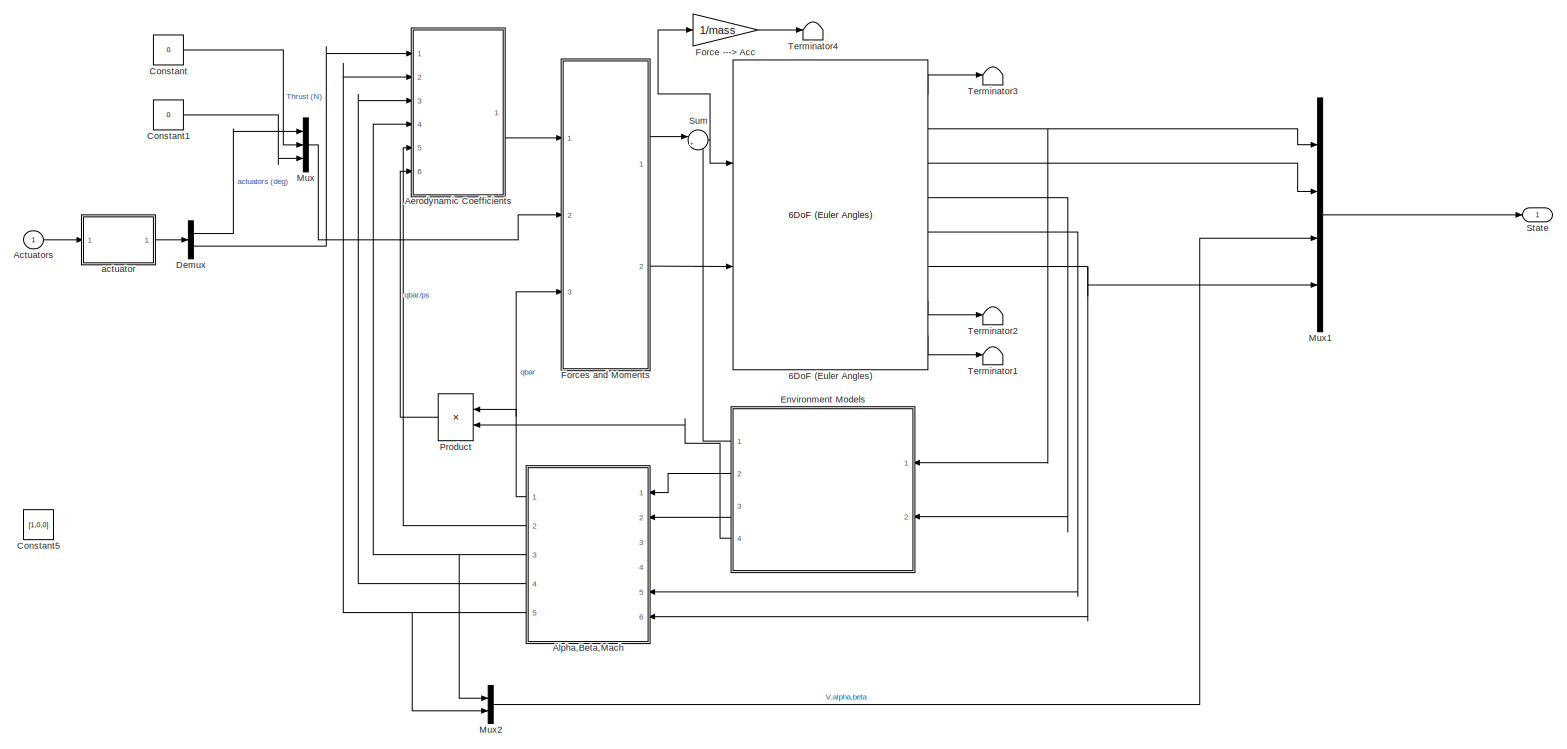
[diagram: root canvas - part 1/1, most of the canvas]
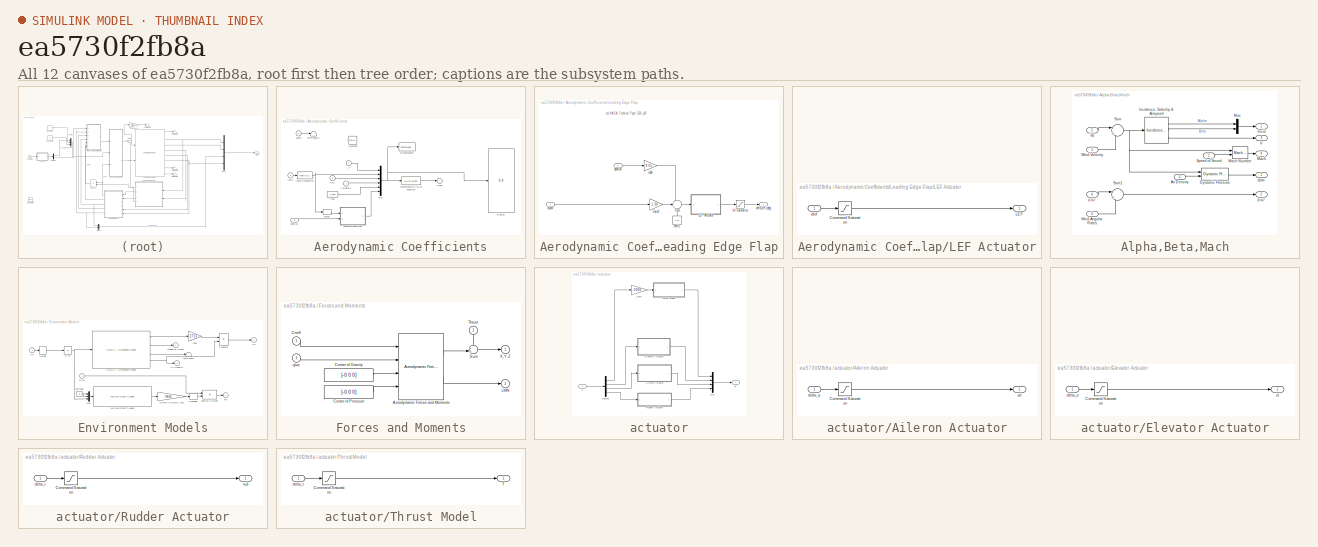
[diagram: thumbnail index - all 12 canvases of the model, root first then tree order]
MODEL slx_ea5730f2fb8a
KIND model
BLOCK [Reference] 6DoF (Euler Angles)  REF=aerolib6dof2/6DoF (Euler Angles)
  Ports = [2, 8]
  SourceBlock = aerolib6dof2/6DoF (Euler Angles)
  SourceType = 6DoF EoM (Body Axis)
  Vm_0 = 0
  eul_0 = 0
  inertia = Inertia
  inertia_e = eye(3)
  inertia_f = 2*eye(3)
  k_quat = 1.0
  mass_0 = mass
  mass_e = 0.5
  mass_f = 2.0
  mtype = Fixed
  pm_0 = 0
  rep = Euler Angles
  units = English (Velocity in ft/s)
  xme_0 = 0
BLOCK [Inport] Actuators
  IconDisplay = Port number
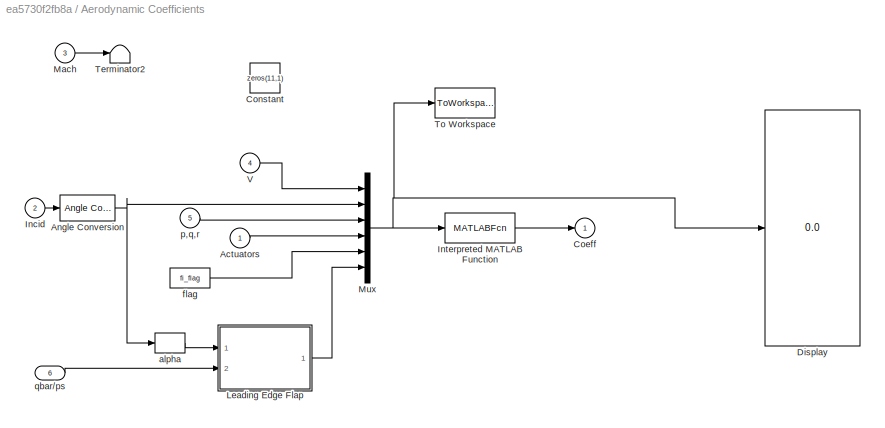
BLOCK [SubSystem] Aerodynamic Coefficients
  FunctionWithSeparateData = off
  MaskHideContents = off
  MinAlgLoopOccurrences = off
  Opaque = off
  Ports = [6, 1]
  PropExecContextOutsideSubsystem = off
  RTWSystemCode = Auto
  RequestExecContextInheritance = off
BLOCK [Inport] Aerodynamic Coefficients/Actuators
  IconDisplay = Port number
BLOCK [Reference] Aerodynamic Coefficients/Angle Conversion  REF=aerolibconvert2/Angle Conversion
  IU = rad
  OU = deg
  Ports = [1, 1]
  SourceBlock = aerolibconvert2/Angle Conversion
  SourceType = Angle Conversion
BLOCK [Outport] Aerodynamic Coefficients/Coeff
  IconDisplay = Port number
  InitialOutput = 0
BLOCK [Constant] Aerodynamic Coefficients/Constant
  Value = zeros(11,1)
BLOCK [Display] Aerodynamic Coefficients/Display
  Decimation = 12
  Lockdown = off
  Ports = [1]
BLOCK [Inport] Aerodynamic Coefficients/Incid
  IconDisplay = Port number
  Port = 2
BLOCK [MATLABFcn] Aerodynamic Coefficients/Interpreted MATLAB Function
  MATLABFcn = F16Coef1
  OutputDimensions = 6
  Ports = [1, 1]
BLOCK [SubSystem] Aerodynamic Coefficients/Leading Edge Flap
  FunctionWithSeparateData = off
  MaskHideContents = off
  MinAlgLoopOccurrences = off
  Opaque = off
  Ports = [2, 1]
  PropExecContextOutsideSubsystem = off
  RTWSystemCode = Auto
  RequestExecContextInheritance = off
BLOCK [Gain] Aerodynamic Coefficients/Leading Edge Flap/Gain2
  Gain = 1.38
BLOCK [SubSystem] Aerodynamic Coefficients/Leading Edge Flap/LEF Actuator
  FunctionWithSeparateData = off
  MaskHideContents = off
  MinAlgLoopOccurrences = off
  Opaque = off
  Ports = [1, 1]
  PropExecContextOutsideSubsystem = off
  RTWSystemCode = Auto
  RequestExecContextInheritance = off
BLOCK [Saturate] Aerodynamic Coefficients/Leading Edge Flap/LEF Actuator/Command Saturation
  InputPortMap = u0
  LowerLimit = 0
  Ports = [1, 1]
  UpperLimit = 25
BLOCK [Outport] Aerodynamic Coefficients/Leading Edge Flap/LEF Actuator/LEF
  IconDisplay = Port number
BLOCK [Inport] Aerodynamic Coefficients/Leading Edge Flap/LEF Actuator/dlef
  IconDisplay = Port number
BLOCK [Sum] Aerodynamic Coefficients/Leading Edge Flap/Sum
  IconShape = round
  Inputs = -|+|+
  Ports = [3, 1]
BLOCK [Inport] Aerodynamic Coefficients/Leading Edge Flap/alpha
  IconDisplay = Port number
BLOCK [Constant] Aerodynamic Coefficients/Leading Edge Flap/coeff1
  Value = 1.45
BLOCK [Outport] Aerodynamic Coefficients/Leading Edge Flap/delta_lef (deg)
  IconDisplay = Port number
BLOCK [Saturate] Aerodynamic Coefficients/Leading Edge Flap/lef Saturation
  InputPortMap = u0
  LowerLimit = 0
  Ports = [1, 1]
  UpperLimit = 25
BLOCK [Inport] Aerodynamic Coefficients/Leading Edge Flap/qbar//ps
  IconDisplay = Port number
  Port = 2
BLOCK [Gain] Aerodynamic Coefficients/Leading Edge Flap/r2d6
  Gain = 9.05
BLOCK [Inport] Aerodynamic Coefficients/Mach
  IconDisplay = Port number
  Port = 3
BLOCK [Mux] Aerodynamic Coefficients/Mux
  DisplayOption = bar
  Inputs = 6
  Ports = [6, 1]
BLOCK [Terminator] Aerodynamic Coefficients/Terminator2
BLOCK [ToWorkspace] Aerodynamic Coefficients/To Workspace
  MaxDataPoints = inf
  Ports = [1]
  SampleTime = -1
  VariableName = simout
BLOCK [Inport] Aerodynamic Coefficients/V
  IconDisplay = Port number
  Port = 4
BLOCK [Selector] Aerodynamic Coefficients/alpha
  IndexOptions = Index vector (dialog)
  Indices = 1
  InputPortWidth = 2
  OutputSizes = 1
  Ports = [1, 1]
BLOCK [Constant] Aerodynamic Coefficients/flag
  Value = fi_flag
BLOCK [Inport] Aerodynamic Coefficients/p,q,r
  IconDisplay = Port number
  Port = 5
BLOCK [Inport] Aerodynamic Coefficients/qbar//ps
  IconDisplay = Port number
  Port = 6
BLOCK [SubSystem] Alpha,Beta,Mach
  FunctionWithSeparateData = off
  MaskHideContents = off
  MinAlgLoopOccurrences = off
  Opaque = off
  Ports = [6, 5]
  PropExecContextOutsideSubsystem = off
  RTWSystemCode = Auto
  RequestExecContextInheritance = off
BLOCK [Inport] Alpha,Beta,Mach/Air Density
  IconDisplay = Port number
  Port = 2
BLOCK [Reference] Alpha,Beta,Mach/Dynamic Pressure  REF=aerolibasang/Dynamic Pressure
  Ports = [2, 1]
  SourceBlock = aerolibasang/Dynamic Pressure
  SourceType = Dynamic Pressure
BLOCK [Outport] Alpha,Beta,Mach/Incid
  IconDisplay = Port number
  Port = 5
BLOCK [Reference] Alpha,Beta,Mach/Incidence, Sideslip & Airspeed  REF=aerolibasang/Incidence, Sideslip,
& Airspeed
  Ports = [1, 3]
  SourceBlock = aerolibasang/Incidence, Sideslip,\n& Airspeed
  SourceType = Incidence,Sideslip,&Airspeed
BLOCK [Outport] Alpha,Beta,Mach/Mach
  IconDisplay = Port number
  Port = 4
BLOCK [Reference] Alpha,Beta,Mach/Mach Number  REF=aerolibasang/Mach Number
  Ports = [2, 1]
  SourceBlock = aerolibasang/Mach Number
  SourceType = Mach Number
BLOCK [Mux] Alpha,Beta,Mach/Mux
  DisplayOption = bar
  Inputs = 2
  Ports = [2, 1]
BLOCK [Inport] Alpha,Beta,Mach/Speed of Sound
  IconDisplay = Port number
BLOCK [Sum] Alpha,Beta,Mach/Sum
  IconShape = round
  Inputs = |+-
  Ports = [2, 1]
BLOCK [Sum] Alpha,Beta,Mach/Sum1
  IconShape = round
  Inputs = |++
  Ports = [2, 1]
BLOCK [Outport] Alpha,Beta,Mach/V
  IconDisplay = Port number
  Port = 3
BLOCK [Inport] Alpha,Beta,Mach/Vb
  IconDisplay = Port number
  Port = 5
  PortDimensions = 3
BLOCK [Inport] Alpha,Beta,Mach/Wind Angular Rates
  IconDisplay = Port number
  Port = 4
  PortDimensions = 3
BLOCK [Inport] Alpha,Beta,Mach/Wind Velocity
  IconDisplay = Port number
  Port = 3
  PortDimensions = 3
BLOCK [Inport] Alpha,Beta,Mach/p,q,r
  IconDisplay = Port number
  Port = 6
  PortDimensions = 3
BLOCK [Outport] Alpha,Beta,Mach/p,q,r 
  IconDisplay = Port number
  Port = 2
BLOCK [Outport] Alpha,Beta,Mach/qbar
  IconDisplay = Port number
  InitialOutput = 0
BLOCK [Constant] Constant
  Value = 0
BLOCK [Constant] Constant1
  Value = 0
BLOCK [Constant] Constant5
  Value = [1,0,0]
BLOCK [Demux] Demux
  DisplayOption = bar
  Outputs = [1 3]
  Ports = [1, 2]
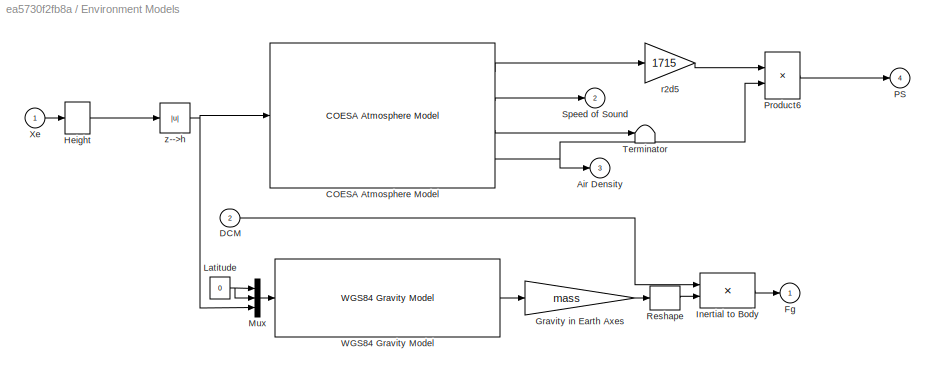
BLOCK [SubSystem] Environment Models
  FunctionWithSeparateData = off
  MaskHideContents = off
  MinAlgLoopOccurrences = off
  Opaque = off
  Ports = [2, 4]
  PropExecContextOutsideSubsystem = off
  RTWSystemCode = Auto
  RequestExecContextInheritance = off
BLOCK [Outport] Environment Models/Air Density
  IconDisplay = Port number
  InitialOutput = 0
  Port = 3
BLOCK [Reference] Environment Models/COESA Atmosphere Model  REF=aerolibatmos2/COESA Atmosphere Model
  Ports = [1, 4]
  SourceBlock = aerolibatmos2/COESA Atmosphere Model
  SourceType = Atmosphere Model
  action = None
  envelope_percent = 1%
  envelope_var = High temperature
  model = Profile
  profile_alt = 5 km (16404 ft)
  profile_percent = 10%
  profile_var = High temperature
  spec = 1976 COESA-extended U.S. Standard Atmosphere
  units = English (Velocity in ft/s)
BLOCK [Inport] Environment Models/DCM
  IconDisplay = Port number
  Port = 2
BLOCK [Outport] Environment Models/Fg
  IconDisplay = Port number
  InitialOutput = 0
BLOCK [Gain] Environment Models/Gravity in Earth Axes
  Gain = mass
BLOCK [Selector] Environment Models/Height
  IndexOptions = Index vector (dialog)
  Indices = [3]
  InputPortWidth = 3
  OutputSizes = 1
  Ports = [1, 1]
BLOCK [Product] Environment Models/Inertial to Body
  Multiplication = Matrix(*)
  Ports = [2, 1]
  RndMeth = Floor
BLOCK [Constant] Environment Models/Latitude
  Value = 0
BLOCK [Mux] Environment Models/Mux
  DisplayOption = bar
  Inputs = 3
  Ports = [3, 1]
BLOCK [Outport] Environment Models/PS
  IconDisplay = Port number
  Port = 4
BLOCK [Product] Environment Models/Product6
  Inputs = **
  Ports = [2, 1]
  RndMeth = Floor
BLOCK [Reshape] Environment Models/Reshape
  Ports = [1, 1]
BLOCK [Outport] Environment Models/Speed of Sound
  IconDisplay = Port number
  InitialOutput = 0
  Port = 2
BLOCK [Terminator] Environment Models/Terminator
BLOCK [Reference] Environment Models/WGS84 Gravity Model   REF=aerolibgravity2/WGS84 Gravity Model 
  Ports = [1, 1]
  SourceBlock = aerolibgravity2/WGS84 Gravity Model
  SourceType = WGS84 Gravity Model 3D
  action = None
  day = 10
  jd_loc = off
  model = WGS84 Taylor Series
  month = October
  no_atmos = on
  no_centrifugal = on
  precessing = on
  units = English
  year = 2004
BLOCK [Inport] Environment Models/Xe
  IconDisplay = Port number
  PortDimensions = 3
BLOCK [Gain] Environment Models/r2d5
  Gain = 1715
BLOCK [Abs] Environment Models/z-->h
BLOCK [Gain] Force ---> Acc
  Gain = 1/mass
BLOCK [SubSystem] Forces and Moments
  FunctionWithSeparateData = off
  MaskHideContents = off
  MinAlgLoopOccurrences = off
  Opaque = off
  Ports = [3, 2]
  PropExecContextOutsideSubsystem = off
  RTWSystemCode = Auto
  RequestExecContextInheritance = off
BLOCK [Reference] Forces and Moments/Aerodynamic Forces and Moments   REF=aerolibadyn/Aerodynamic
Forces and Moments 
  Ports = [4, 2]
  S = S_ref
  SourceBlock = aerolibadyn/Aerodynamic\nForces and Moments
  SourceType = Aerodynamic Forces and Moments
  b = b_ref
  cbar = d_ref
  inputAxes = Body
  outputForceAxes = Body
  outputMomentAxes = Body
BLOCK [Constant] Forces and Moments/Center of Gravity
  Value = [-0 0 0]
BLOCK [Constant] Forces and Moments/Center of Pressure
  Value = [-0 0 0]
BLOCK [Inport] Forces and Moments/Coeff
  IconDisplay = Port number
BLOCK [Outport] Forces and Moments/LMN
  IconDisplay = Port number
  InitialOutput = 0
  Port = 2
BLOCK [Sum] Forces and Moments/Sum
  IconShape = round
  Inputs = ++|
  Ports = [2, 1]
BLOCK [Inport] Forces and Moments/Thrust
  IconDisplay = Port number
  Port = 2
BLOCK [Outport] Forces and Moments/X,Y,Z
  IconDisplay = Port number
  InitialOutput = 0
BLOCK [Inport] Forces and Moments/qbar
  IconDisplay = Port number
  Port = 3
BLOCK [Mux] Mux
  DisplayOption = bar
  Inputs = 3
  Ports = [3, 1]
BLOCK [Mux] Mux1
  DisplayOption = bar
  Ports = [4, 1]
BLOCK [Mux] Mux2
  DisplayOption = bar
  Inputs = 2
  Ports = [2, 1]
BLOCK [Product] Product
  Inputs = */
  Ports = [2, 1]
  RndMeth = Floor
BLOCK [Outport] State
  IconDisplay = Port number
BLOCK [Sum] Sum
  IconShape = round
  Inputs = |++
  Ports = [2, 1]
BLOCK [Terminator] Terminator1
BLOCK [Terminator] Terminator2
BLOCK [Terminator] Terminator3
BLOCK [Terminator] Terminator4
BLOCK [SubSystem] actuator
  FunctionWithSeparateData = off
  MaskHideContents = off
  MinAlgLoopOccurrences = off
  Opaque = off
  Ports = [1, 1]
  PropExecContextOutsideSubsystem = off
  RTWSystemCode = Auto
  RequestExecContextInheritance = off
BLOCK [SubSystem] actuator/Aileron Actuator
  FunctionWithSeparateData = off
  MaskHideContents = off
  MinAlgLoopOccurrences = off
  Opaque = off
  Ports = [1, 1]
  PropExecContextOutsideSubsystem = off
  RTWSystemCode = Auto
  RequestExecContextInheritance = off
BLOCK [Saturate] actuator/Aileron Actuator/Command Saturation
  InputPortMap = u0
  LowerLimit = -21.5
  Ports = [1, 1]
  UpperLimit = 21.5
BLOCK [Outport] actuator/Aileron Actuator/ail
  IconDisplay = Port number
BLOCK [Inport] actuator/Aileron Actuator/delta_a
  IconDisplay = Port number
BLOCK [Demux] actuator/Demux
  DisplayOption = bar
  Ports = [1, 4]
BLOCK [SubSystem] actuator/Elevator Actuator
  FunctionWithSeparateData = off
  MaskHideContents = off
  MinAlgLoopOccurrences = off
  Opaque = off
  Ports = [1, 1]
  PropExecContextOutsideSubsystem = off
  RTWSystemCode = Auto
  RequestExecContextInheritance = off
BLOCK [Saturate] actuator/Elevator Actuator/Command Saturation
  InputPortMap = u0
  LowerLimit = -25
  Ports = [1, 1]
  UpperLimit = 25
BLOCK [Inport] actuator/Elevator Actuator/delta_e
  IconDisplay = Port number
BLOCK [Outport] actuator/Elevator Actuator/el
  IconDisplay = Port number
BLOCK [Gain] actuator/Gain
  Gain = 1000
  OutDataTypeStr = Inherit: Inherit via internal rule
  ParamDataTypeStr = Inherit: Inherit via internal rule
  SaturateOnIntegerOverflow = off
BLOCK [Mux] actuator/Mux
  DisplayOption = bar
  Ports = [4, 1]
BLOCK [SubSystem] actuator/Rudder Actuator
  FunctionWithSeparateData = off
  MaskHideContents = off
  MinAlgLoopOccurrences = off
  Opaque = off
  Ports = [1, 1]
  PropExecContextOutsideSubsystem = off
  RTWSystemCode = Auto
  RequestExecContextInheritance = off
BLOCK [Saturate] actuator/Rudder Actuator/Command Saturation
  InputPortMap = u0
  LowerLimit = -30
  Ports = [1, 1]
  UpperLimit = 30
BLOCK [Inport] actuator/Rudder Actuator/delta_r
  IconDisplay = Port number
BLOCK [Outport] actuator/Rudder Actuator/rud
  IconDisplay = Port number
BLOCK [SubSystem] actuator/Thrust Model
  FunctionWithSeparateData = off
  MaskHideContents = off
  MinAlgLoopOccurrences = off
  Opaque = off
  Ports = [1, 1]
  PropExecContextOutsideSubsystem = off
  RTWSystemCode = Auto
  RequestExecContextInheritance = off
BLOCK [Saturate] actuator/Thrust Model/Command Saturation
  InputPortMap = u0
  LowerLimit = 1000
  Ports = [1, 1]
  UpperLimit = 19000
BLOCK [Outport] actuator/Thrust Model/T
  IconDisplay = Port number
BLOCK [Inport] actuator/Thrust Model/delta_t
  IconDisplay = Port number
BLOCK [Inport] actuator/u
  IconDisplay = Port number
BLOCK [Outport] actuator/uc
  IconDisplay = Port number
ANNOTATION Aerodynamic Coefficients/Leading Edge Flap: see NASA Technical Paper 1538, p34
LINE 6DoF (Euler Angles):1 -> Terminator3:1
NET 6DoF (Euler Angles):2 -> Environment Models:1, Mux1:1
LINE 6DoF (Euler Angles):3 -> Mux1:2
LINE 6DoF (Euler Angles):4 -> Environment Models:2
LINE 6DoF (Euler Angles):5 -> Alpha,Beta,Mach:5
NET 6DoF (Euler Angles):6 -> Alpha,Beta,Mach:6, Mux1:4
LINE 6DoF (Euler Angles):7 -> Terminator2:1
LINE 6DoF (Euler Angles):8 -> Terminator1:1
LINE Actuators:1 -> actuator:1
LINE Aerodynamic Coefficients/Actuators:1 -> Aerodynamic Coefficients/Mux:4
NET Aerodynamic Coefficients/Angle Conversion:1 -> Aerodynamic Coefficients/Mux:2, Aerodynamic Coefficients/alpha:1
LINE Aerodynamic Coefficients/Incid:1 -> Aerodynamic Coefficients/Angle Conversion:1
LINE Aerodynamic Coefficients/Interpreted MATLAB Function:1 -> Aerodynamic Coefficients/Coeff:1
LINE Aerodynamic Coefficients/Leading Edge Flap/Gain2:1 -> Aerodynamic Coefficients/Leading Edge Flap/Sum:2
LINE Aerodynamic Coefficients/Leading Edge Flap/LEF Actuator/Command Saturation:1 -> Aerodynamic Coefficients/Leading Edge Flap/LEF Actuator/LEF:1
LINE Aerodynamic Coefficients/Leading Edge Flap/LEF Actuator/dlef:1 -> Aerodynamic Coefficients/Leading Edge Flap/LEF Actuator/Command Saturation:1
LINE Aerodynamic Coefficients/Leading Edge Flap/LEF Actuator:1 -> Aerodynamic Coefficients/Leading Edge Flap/lef Saturation:1
LINE Aerodynamic Coefficients/Leading Edge Flap/Sum:1 -> Aerodynamic Coefficients/Leading Edge Flap/LEF Actuator:1
LINE Aerodynamic Coefficients/Leading Edge Flap/alpha:1 -> Aerodynamic Coefficients/Leading Edge Flap/Gain2:1
LINE Aerodynamic Coefficients/Leading Edge Flap/coeff1:1 -> Aerodynamic Coefficients/Leading Edge Flap/Sum:3
LINE Aerodynamic Coefficients/Leading Edge Flap/lef Saturation:1 -> Aerodynamic Coefficients/Leading Edge Flap/delta_lef (deg):1
LINE Aerodynamic Coefficients/Leading Edge Flap/qbar//ps:1 -> Aerodynamic Coefficients/Leading Edge Flap/r2d6:1
LINE Aerodynamic Coefficients/Leading Edge Flap/r2d6:1 -> Aerodynamic Coefficients/Leading Edge Flap/Sum:1
LINE Aerodynamic Coefficients/Leading Edge Flap:1 -> Aerodynamic Coefficients/Mux:6
LINE Aerodynamic Coefficients/Mach:1 -> Aerodynamic Coefficients/Terminator2:1
NET Aerodynamic Coefficients/Mux:1 -> Aerodynamic Coefficients/Display:1, Aerodynamic Coefficients/Interpreted MATLAB Function:1, Aerodynamic Coefficients/To Workspace:1
LINE Aerodynamic Coefficients/V:1 -> Aerodynamic Coefficients/Mux:1
LINE Aerodynamic Coefficients/alpha:1 -> Aerodynamic Coefficients/Leading Edge Flap:1
LINE Aerodynamic Coefficients/flag:1 -> Aerodynamic Coefficients/Mux:5
LINE Aerodynamic Coefficients/p,q,r:1 -> Aerodynamic Coefficients/Mux:3
LINE Aerodynamic Coefficients/qbar//ps:1 -> Aerodynamic Coefficients/Leading Edge Flap:2
LINE Aerodynamic Coefficients:1 -> Forces and Moments:1
LINE Alpha,Beta,Mach/Air Density:1 -> Alpha,Beta,Mach/Dynamic Pressure:2
LINE Alpha,Beta,Mach/Dynamic Pressure:1 -> Alpha,Beta,Mach/qbar:1
LINE Alpha,Beta,Mach/Incidence, Sideslip & Airspeed:1 -> Alpha,Beta,Mach/Mux:1
LINE Alpha,Beta,Mach/Incidence, Sideslip & Airspeed:2 -> Alpha,Beta,Mach/Mux:2
LINE Alpha,Beta,Mach/Incidence, Sideslip & Airspeed:3 -> Alpha,Beta,Mach/V:1
LINE Alpha,Beta,Mach/Mach Number:1 -> Alpha,Beta,Mach/Mach:1
LINE Alpha,Beta,Mach/Mux:1 -> Alpha,Beta,Mach/Incid:1
LINE Alpha,Beta,Mach/Speed of Sound:1 -> Alpha,Beta,Mach/Mach Number:2
LINE Alpha,Beta,Mach/Sum1:1 -> Alpha,Beta,Mach/p,q,r :1
NET Alpha,Beta,Mach/Sum:1 -> Alpha,Beta,Mach/Dynamic Pressure:1, Alpha,Beta,Mach/Incidence, Sideslip & Airspeed:1, Alpha,Beta,Mach/Mach Number:1
LINE Alpha,Beta,Mach/Vb:1 -> Alpha,Beta,Mach/Sum:1
LINE Alpha,Beta,Mach/Wind Angular Rates:1 -> Alpha,Beta,Mach/Sum1:2
LINE Alpha,Beta,Mach/Wind Velocity:1 -> Alpha,Beta,Mach/Sum:2
LINE Alpha,Beta,Mach/p,q,r:1 -> Alpha,Beta,Mach/Sum1:1
NET Alpha,Beta,Mach:1 -> Forces and Moments:3, Product:1
LINE Alpha,Beta,Mach:2 -> Aerodynamic Coefficients:5
NET Alpha,Beta,Mach:3 -> Aerodynamic Coefficients:4, Mux2:1
LINE Alpha,Beta,Mach:4 -> Aerodynamic Coefficients:3
NET Alpha,Beta,Mach:5 -> Aerodynamic Coefficients:2, Mux2:2
LINE Constant1:1 -> Mux:3
LINE Constant:1 -> Mux:2
LINE Demux:1 -> Mux:1
LINE Demux:2 -> Aerodynamic Coefficients:1
LINE Environment Models/COESA Atmosphere Model:1 -> Environment Models/r2d5:1
LINE Environment Models/COESA Atmosphere Model:2 -> Environment Models/Speed of Sound:1
LINE Environment Models/COESA Atmosphere Model:3 -> Environment Models/Terminator:1
NET Environment Models/COESA Atmosphere Model:4 -> Environment Models/Air Density:1, Environment Models/Product6:2
LINE Environment Models/DCM:1 -> Environment Models/Inertial to Body:1
LINE Environment Models/Gravity in Earth Axes:1 -> Environment Models/Reshape:1
LINE Environment Models/Height:1 -> Environment Models/z-->h:1
LINE Environment Models/Inertial to Body:1 -> Environment Models/Fg:1
NET Environment Models/Latitude:1 -> Environment Models/Mux:1, Environment Models/Mux:2
LINE Environment Models/Mux:1 -> Environment Models/WGS84 Gravity Model :1
LINE Environment Models/Product6:1 -> Environment Models/PS:1
LINE Environment Models/Reshape:1 -> Environment Models/Inertial to Body:2
LINE Environment Models/WGS84 Gravity Model :1 -> Environment Models/Gravity in Earth Axes:1
LINE Environment Models/Xe:1 -> Environment Models/Height:1
LINE Environment Models/r2d5:1 -> Environment Models/Product6:1
NET Environment Models/z-->h:1 -> Environment Models/COESA Atmosphere Model:1, Environment Models/Mux:3
LINE Environment Models:1 -> Sum:2
LINE Environment Models:2 -> Alpha,Beta,Mach:1
LINE Environment Models:3 -> Alpha,Beta,Mach:2
LINE Environment Models:4 -> Product:2
LINE Force ---> Acc:1 -> Terminator4:1
LINE Forces and Moments/Aerodynamic Forces and Moments :1 -> Forces and Moments/Sum:2
LINE Forces and Moments/Aerodynamic Forces and Moments :2 -> Forces and Moments/LMN:1
LINE Forces and Moments/Center of Gravity:1 -> Forces and Moments/Aerodynamic Forces and Moments :3
LINE Forces and Moments/Center of Pressure:1 -> Forces and Moments/Aerodynamic Forces and Moments :4
LINE Forces and Moments/Coeff:1 -> Forces and Moments/Aerodynamic Forces and Moments :1
LINE Forces and Moments/Sum:1 -> Forces and Moments/X,Y,Z:1
LINE Forces and Moments/Thrust:1 -> Forces and Moments/Sum:1
LINE Forces and Moments/qbar:1 -> Forces and Moments/Aerodynamic Forces and Moments :2
LINE Forces and Moments:1 -> Sum:1
LINE Forces and Moments:2 -> 6DoF (Euler Angles):2
LINE Mux1:1 -> State:1
LINE Mux2:1 -> Mux1:3
LINE Mux:1 -> Forces and Moments:2
LINE Product:1 -> Aerodynamic Coefficients:6
NET Sum:1 -> 6DoF (Euler Angles):1, Force ---> Acc:1
LINE actuator/Aileron Actuator/Command Saturation:1 -> actuator/Aileron Actuator/ail:1
LINE actuator/Aileron Actuator/delta_a:1 -> actuator/Aileron Actuator/Command Saturation:1
LINE actuator/Aileron Actuator:1 -> actuator/Mux:3
LINE actuator/Demux:1 -> actuator/Gain:1
LINE actuator/Demux:2 -> actuator/Elevator Actuator:1
LINE actuator/Demux:3 -> actuator/Aileron Actuator:1
LINE actuator/Demux:4 -> actuator/Rudder Actuator:1
LINE actuator/Elevator Actuator/Command Saturation:1 -> actuator/Elevator Actuator/el:1
LINE actuator/Elevator Actuator/delta_e:1 -> actuator/Elevator Actuator/Command Saturation:1
LINE actuator/Elevator Actuator:1 -> actuator/Mux:2
LINE actuator/Gain:1 -> actuator/Thrust Model:1
LINE actuator/Mux:1 -> actuator/uc:1
LINE actuator/Rudder Actuator/Command Saturation:1 -> actuator/Rudder Actuator/rud:1
LINE actuator/Rudder Actuator/delta_r:1 -> actuator/Rudder Actuator/Command Saturation:1
LINE actuator/Rudder Actuator:1 -> actuator/Mux:4
LINE actuator/Thrust Model/Command Saturation:1 -> actuator/Thrust Model/T:1
LINE actuator/Thrust Model/delta_t:1 -> actuator/Thrust Model/Command Saturation:1
LINE actuator/Thrust Model:1 -> actuator/Mux:1
LINE actuator/u:1 -> actuator/Demux:1
LINE actuator:1 -> Demux:1
note: NET lines group one-source signal fan-out (src -> all destinations, sorted); 1:1 wires keep LINE
